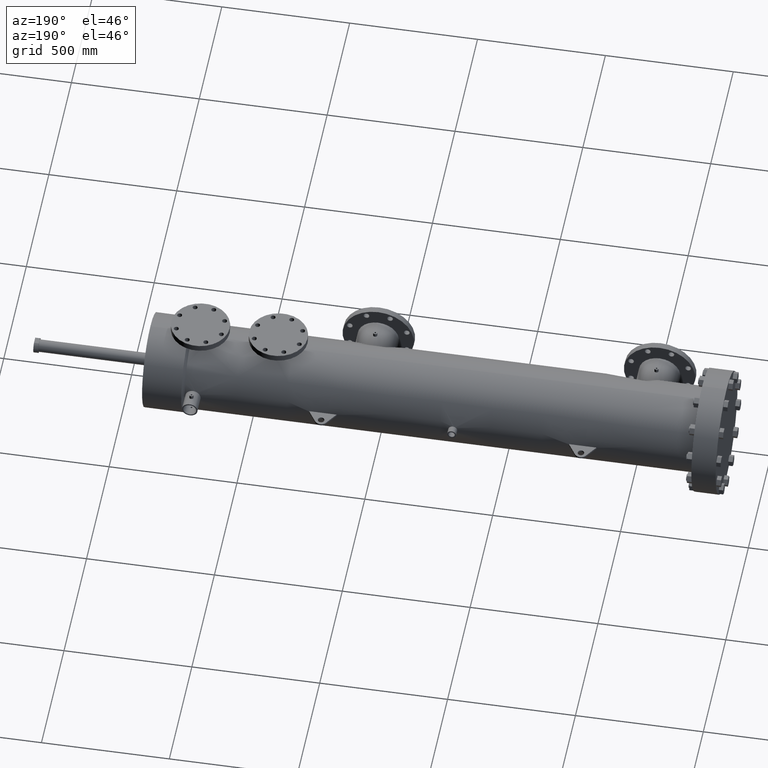
[diagram: clean part render]
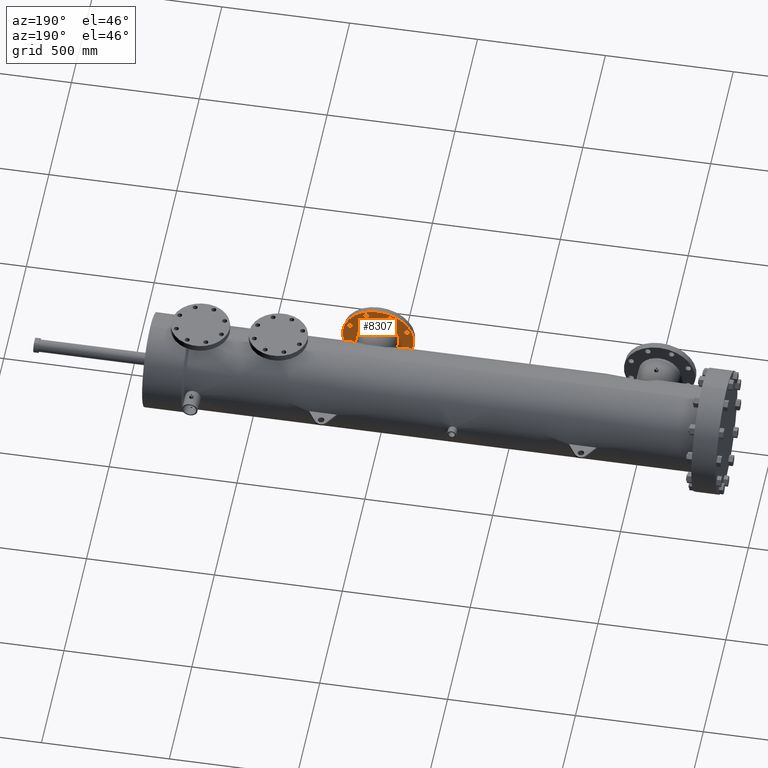
[diagram: same view with one face highlighted and labeled with its STEP entity id]
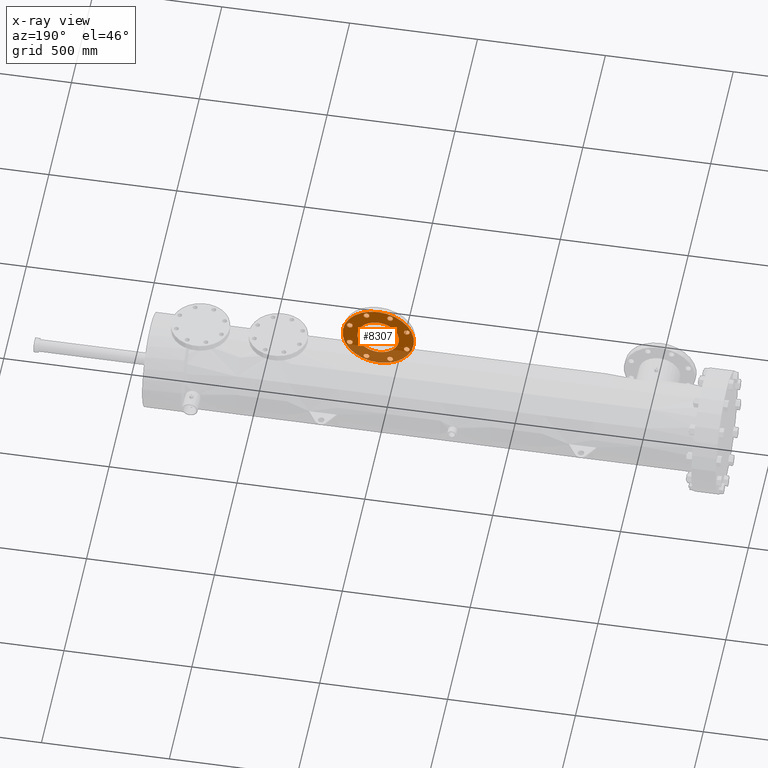
[diagram: x-ray of the same camera — body ghosted, the highlighted face saturated]
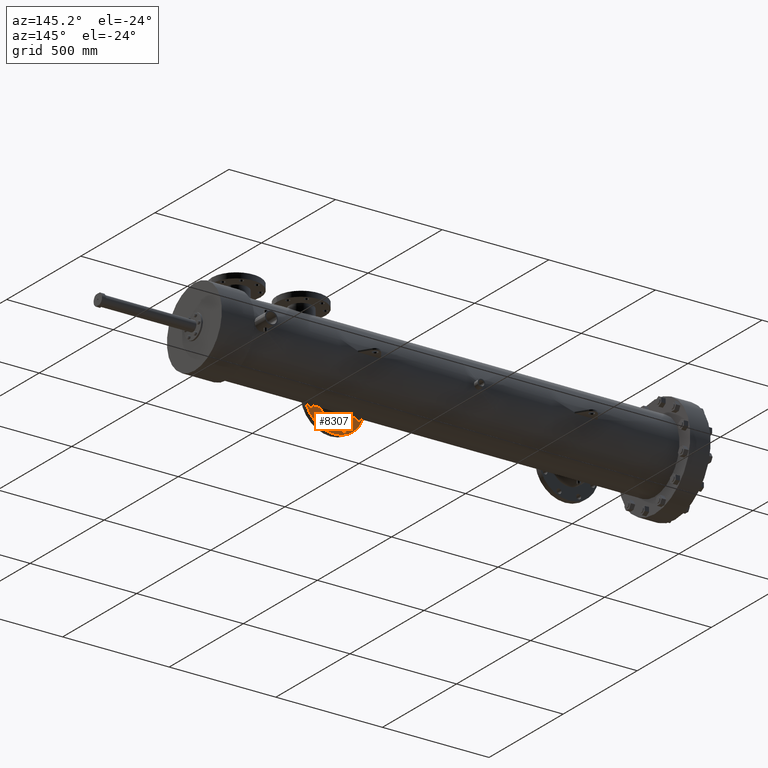
[diagram: same view with one face highlighted and labeled with its STEP entity id]
A machine part, auxiliary view. The second image highlights one B-rep face of the part: STEP entity #8307.
The next image is the same camera in x-ray: the body ghosted, the highlighted face saturated — about 32% of this face is hidden behind the body in this view.
A second angle (auxiliary view) of the same face is appended — the face is thin or edge-on in the first view.
In plain terms, the highlighted planar face has unit normal (-0, 1, 0).
Its self-contained STEP definition (entity closure, byte-faithful):
#241 = EDGE_CURVE ( 'NONE', #20006, #2032, #7569, .T. ) ;
#263 = DIRECTION ( 'NONE',  ( 0.0000000000000000000, 0.0000000000000000000, 1.000000000000000000 ) ) ;
#332 = ORIENTED_EDGE ( 'NONE', *, *, #4064, .T. ) ;
#421 = EDGE_CURVE ( 'NONE', #2140, #3892, #2969, .T. ) ;
#460 = ORIENTED_EDGE ( 'NONE', *, *, #14989, .T. ) ;
#600 = DIRECTION ( 'NONE',  ( 0.0000000000000000000, -1.000000000000000000, 0.0000000000000000000 ) ) ;
#683 = DIRECTION ( 'NONE',  ( 0.0000000000000000000, 0.0000000000000000000, 1.000000000000000000 ) ) ;
#919 = ORIENTED_EDGE ( 'NONE', *, *, #5020, .T. ) ;
#1232 = DIRECTION ( 'NONE',  ( 0.0000000000000000000, 0.0000000000000000000, 1.000000000000000000 ) ) ;
#1312 = CARTESIAN_POINT ( 'NONE',  ( 754.4543695991535515, 173.5313553879231563, 1.377614451264555617 ) ) ;
#1639 = AXIS2_PLACEMENT_3D ( 'NONE', #3551, #21237, #23183 ) ;
#1712 = ORIENTED_EDGE ( 'NONE', *, *, #9562, .T. ) ;
#1798 = VERTEX_POINT ( 'NONE', #9699 ) ;
#1883 = CARTESIAN_POINT ( 'NONE',  ( 751.8835562709892884, 173.5313553879231563, -4.828877951918369327 ) ) ;
#1944 = VERTEX_POINT ( 'NONE', #16028 ) ;
#2032 = VERTEX_POINT ( 'NONE', #2866 ) ;
#2140 = VERTEX_POINT ( 'NONE', #4900 ) ;
#2351 = DIRECTION ( 'NONE',  ( -0.0000000000000000000, 1.000000000000000000, 0.0000000000000000000 ) ) ;
#2866 = CARTESIAN_POINT ( 'NONE',  ( 751.8835562709898568, 173.5313553879231563, 3.948427779428540063 ) ) ;
#2969 = CIRCLE ( 'NONE', #7751, 3.196850393700750192 ) ;
#2997 = AXIS2_PLACEMENT_3D ( 'NONE', #8039, #19790, #6140 ) ;
#3471 = CIRCLE ( 'NONE', #1639, 0.4399999999999270051 ) ;
#3551 = CARTESIAN_POINT ( 'NONE',  ( 745.6770638678066234, 173.5313553879231563, 1.817614451264762510 ) ) ;
#3559 = DIRECTION ( 'NONE',  ( 0.0000000000000000000, 0.0000000000000000000, 1.000000000000000000 ) ) ;
#3647 = CARTESIAN_POINT ( 'NONE',  ( 751.8835562709892884, 173.5313553879231563, -4.388877951918441767 ) ) ;
#3892 = VERTEX_POINT ( 'NONE', #22376 ) ;
#3959 = CARTESIAN_POINT ( 'NONE',  ( 745.6770638678063960, 173.5313553879231563, -2.258064623754281186 ) ) ;
#4064 = EDGE_CURVE ( 'NONE', #4706, #20081, #20306, .T. ) ;
#4087 = AXIS2_PLACEMENT_3D ( 'NONE', #24871, #11386, #17312 ) ;
#4152 = VERTEX_POINT ( 'NONE', #17268 ) ;
#4254 = CARTESIAN_POINT ( 'NONE',  ( 750.0656234997047704, 173.5313553879231563, 0.0000000000000000000 ) ) ;
#4322 = DIRECTION ( 'NONE',  ( 0.0000000000000000000, 0.0000000000000000000, 1.000000000000000000 ) ) ;
#4333 = CIRCLE ( 'NONE', #11788, 0.4399999999999270051 ) ;
#4378 = CARTESIAN_POINT ( 'NONE',  ( 754.4543695991533241, 173.5313553879231563, -2.258064623754560962 ) ) ;
#4383 = CARTESIAN_POINT ( 'NONE',  ( 748.2478771959706592, 173.5313553879231563, 3.948427779428534290 ) ) ;
#4565 = AXIS2_PLACEMENT_3D ( 'NONE', #5506, #19401, #9605 ) ;
#4706 = VERTEX_POINT ( 'NONE', #3959 ) ;
#4900 = CARTESIAN_POINT ( 'NONE',  ( 750.0656234997047704, 173.5313553879231563, 3.196850393700750192 ) ) ;
#4995 = FACE_BOUND ( 'NONE', #23584, .T. ) ;
#5020 = EDGE_CURVE ( 'NONE', #23421, #1798, #24772, .T. ) ;
#5154 = AXIS2_PLACEMENT_3D ( 'NONE', #12976, #17184, #17000 ) ;
#5186 = DIRECTION ( 'NONE',  ( 0.0000000000000000000, 0.0000000000000000000, 1.000000000000000000 ) ) ;
#5326 = CARTESIAN_POINT ( 'NONE',  ( 745.6770638678066234, 173.5313553879231563, 1.817614451264762510 ) ) ;
#5506 = CARTESIAN_POINT ( 'NONE',  ( 750.0656234997047704, 173.5313553879231563, 0.0000000000000000000 ) ) ;
#5612 = FACE_BOUND ( 'NONE', #18819, .T. ) ;
#5834 = VERTEX_POINT ( 'NONE', #4383 ) ;
#5939 = FACE_BOUND ( 'NONE', #24940, .T. ) ;
#6041 = VERTEX_POINT ( 'NONE', #18547 ) ;
#6080 = DIRECTION ( 'NONE',  ( 0.0000000000000000000, 0.0000000000000000000, 1.000000000000000000 ) ) ;
#6140 = DIRECTION ( 'NONE',  ( 0.0000000000000000000, 0.0000000000000000000, 1.000000000000000000 ) ) ;
#6469 = DIRECTION ( 'NONE',  ( 0.0000000000000000000, 0.0000000000000000000, 1.000000000000000000 ) ) ;
#6503 = DIRECTION ( 'NONE',  ( 0.0000000000000000000, 0.0000000000000000000, 1.000000000000000000 ) ) ;
#6904 = VERTEX_POINT ( 'NONE', #14643 ) ;
#7231 = DIRECTION ( 'NONE',  ( 0.0000000000000000000, -1.000000000000000000, 0.0000000000000000000 ) ) ;
#7288 = VERTEX_POINT ( 'NONE', #4378 ) ;
#7569 = CIRCLE ( 'NONE', #2997, 0.4399999999999270051 ) ;
#7751 = AXIS2_PLACEMENT_3D ( 'NONE', #4254, #10143, #8203 ) ;
#7987 = AXIS2_PLACEMENT_3D ( 'NONE', #24500, #12724, #5186 ) ;
#8000 = CARTESIAN_POINT ( 'NONE',  ( 745.6770638678066234, 173.5313553879231563, 1.377614451264835393 ) ) ;
#8039 = CARTESIAN_POINT ( 'NONE',  ( 751.8835562709898568, 173.5313553879231563, 4.388427779428467623 ) ) ;
#8137 = AXIS2_PLACEMENT_3D ( 'NONE', #21365, #13512, #25254 ) ;
#8203 = DIRECTION ( 'NONE',  ( 0.0000000000000000000, 0.0000000000000000000, -1.000000000000000000 ) ) ;
#8307 = ADVANCED_FACE ( 'NONE', ( #19161, #5612, #15108, #11746, #4995, #5939, #12363, #14502, #16967, #21311 ), #12022, .T. ) ;
#8601 = CIRCLE ( 'NONE', #14076, 0.4399999999999270051 ) ;
#8602 = CIRCLE ( 'NONE', #23825, 3.196850393700750192 ) ;
#8611 = EDGE_CURVE ( 'NONE', #1798, #23421, #21923, .T. ) ;
#8689 = EDGE_CURVE ( 'NONE', #16009, #22265, #19731, .T. ) ;
#8704 = EDGE_CURVE ( 'NONE', #22265, #16009, #3471, .T. ) ;
#8857 = VERTEX_POINT ( 'NONE', #12926 ) ;
#8970 = CARTESIAN_POINT ( 'NONE',  ( 751.8835562709892884, 173.5313553879231563, -4.388877951918441767 ) ) ;
#9235 = EDGE_CURVE ( 'NONE', #20081, #4706, #24626, .T. ) ;
#9445 = EDGE_CURVE ( 'NONE', #2032, #20006, #13843, .T. ) ;
#9524 = EDGE_CURVE ( 'NONE', #10903, #1944, #4333, .T. ) ;
#9562 = EDGE_CURVE ( 'NONE', #6041, #5834, #10766, .T. ) ;
#9605 = DIRECTION ( 'NONE',  ( 0.0000000000000000000, 0.0000000000000000000, 1.000000000000000000 ) ) ;
#9699 = CARTESIAN_POINT ( 'NONE',  ( 748.2478771959703181, 173.5313553879231563, -4.828877951918196132 ) ) ;
#9954 = CARTESIAN_POINT ( 'NONE',  ( 750.0656234997047704, 173.5313553879231563, 0.0000000000000000000 ) ) ;
#10143 = DIRECTION ( 'NONE',  ( -0.0000000000000000000, -1.000000000000000000, -0.0000000000000000000 ) ) ;
#10205 = ORIENTED_EDGE ( 'NONE', *, *, #16644, .T. ) ;
#10375 = EDGE_LOOP ( 'NONE', ( #332, #18836 ) ) ;
#10564 = EDGE_CURVE ( 'NONE', #3892, #2140, #8602, .T. ) ;
#10693 = CIRCLE ( 'NONE', #4565, 5.500000000000049738 ) ;
#10724 = EDGE_LOOP ( 'NONE', ( #21238, #23987 ) ) ;
#10766 = CIRCLE ( 'NONE', #15719, 0.4400000000000728884 ) ;
#10792 = AXIS2_PLACEMENT_3D ( 'NONE', #20036, #20120, #6469 ) ;
#10903 = VERTEX_POINT ( 'NONE', #1312 ) ;
#10917 = CIRCLE ( 'NONE', #8137, 0.4399999999999270051 ) ;
#11153 = ORIENTED_EDGE ( 'NONE', *, *, #24038, .T. ) ;
#11351 = ORIENTED_EDGE ( 'NONE', *, *, #421, .T. ) ;
#11386 = DIRECTION ( 'NONE',  ( 0.0000000000000000000, -1.000000000000000000, 0.0000000000000000000 ) ) ;
#11746 = FACE_BOUND ( 'NONE', #20113, .T. ) ;
#11784 = ORIENTED_EDGE ( 'NONE', *, *, #15479, .T. ) ;
#11788 = AXIS2_PLACEMENT_3D ( 'NONE', #23412, #15655, #263 ) ;
#12022 = PLANE ( 'NONE',  #18889 ) ;
#12038 = EDGE_CURVE ( 'NONE', #8857, #7288, #15194, .T. ) ;
#12363 = FACE_BOUND ( 'NONE', #23052, .T. ) ;
#12412 = EDGE_CURVE ( 'NONE', #4152, #24522, #16949, .T. ) ;
#12630 = DIRECTION ( 'NONE',  ( -0.0000000000000000000, 1.000000000000000000, -0.0000000000000000000 ) ) ;
#12724 = DIRECTION ( 'NONE',  ( 0.0000000000000000000, -1.000000000000000000, 0.0000000000000000000 ) ) ;
#12926 = CARTESIAN_POINT ( 'NONE',  ( 754.4543695991533241, 173.5313553879231563, -1.378064623754706952 ) ) ;
#12976 = CARTESIAN_POINT ( 'NONE',  ( 745.6770638678063960, 173.5313553879231563, -1.818064623754354292 ) ) ;
#13093 = CARTESIAN_POINT ( 'NONE',  ( 754.4543695991533241, 173.5313553879231563, -1.818064623754634068 ) ) ;
#13115 = AXIS2_PLACEMENT_3D ( 'NONE', #5326, #7231, #15089 ) ;
#13229 = DIRECTION ( 'NONE',  ( 0.0000000000000000000, -1.000000000000000000, 0.0000000000000000000 ) ) ;
#13453 = EDGE_LOOP ( 'NONE', ( #17789, #11351 ) ) ;
#13512 = DIRECTION ( 'NONE',  ( 0.0000000000000000000, -1.000000000000000000, 0.0000000000000000000 ) ) ;
#13602 = CARTESIAN_POINT ( 'NONE',  ( 745.6770638678063960, 173.5313553879231563, -1.818064623754354292 ) ) ;
#13778 = DIRECTION ( 'NONE',  ( 0.0000000000000000000, -1.000000000000000000, 0.0000000000000000000 ) ) ;
#13843 = CIRCLE ( 'NONE', #19224, 0.4399999999999270051 ) ;
#14035 = EDGE_CURVE ( 'NONE', #21580, #6904, #8601, .T. ) ;
#14076 = AXIS2_PLACEMENT_3D ( 'NONE', #8970, #22647, #22559 ) ;
#14502 = FACE_BOUND ( 'NONE', #10724, .T. ) ;
#14600 = DIRECTION ( 'NONE',  ( 0.0000000000000000000, 0.0000000000000000000, 1.000000000000000000 ) ) ;
#14643 = CARTESIAN_POINT ( 'NONE',  ( 751.8835562709892884, 173.5313553879231563, -3.948877951918515095 ) ) ;
#14989 = EDGE_CURVE ( 'NONE', #24522, #4152, #10693, .T. ) ;
#15089 = DIRECTION ( 'NONE',  ( 0.0000000000000000000, 0.0000000000000000000, 1.000000000000000000 ) ) ;
#15108 = FACE_BOUND ( 'NONE', #18198, .T. ) ;
#15194 = CIRCLE ( 'NONE', #20083, 0.4399999999999270051 ) ;
#15396 = DIRECTION ( 'NONE',  ( 0.0000000000000000000, 0.0000000000000000000, 1.000000000000000000 ) ) ;
#15479 = EDGE_CURVE ( 'NONE', #6904, #21580, #19930, .T. ) ;
#15655 = DIRECTION ( 'NONE',  ( 0.0000000000000000000, -1.000000000000000000, 0.0000000000000000000 ) ) ;
#15719 = AXIS2_PLACEMENT_3D ( 'NONE', #19810, #13778, #6080 ) ;
#15925 = EDGE_CURVE ( 'NONE', #1944, #10903, #16182, .T. ) ;
#15962 = CARTESIAN_POINT ( 'NONE',  ( 0.0000000000000000000, 173.5313553879231563, 0.0000000000000000000 ) ) ;
#16009 = VERTEX_POINT ( 'NONE', #18567 ) ;
#16028 = CARTESIAN_POINT ( 'NONE',  ( 754.4543695991535515, 173.5313553879231563, 2.257614451264409627 ) ) ;
#16182 = CIRCLE ( 'NONE', #10792, 0.4399999999999270051 ) ;
#16644 = EDGE_CURVE ( 'NONE', #5834, #6041, #24154, .T. ) ;
#16949 = CIRCLE ( 'NONE', #24011, 5.500000000000049738 ) ;
#16967 = FACE_BOUND ( 'NONE', #13453, .T. ) ;
#17000 = DIRECTION ( 'NONE',  ( 0.0000000000000000000, 0.0000000000000000000, 1.000000000000000000 ) ) ;
#17184 = DIRECTION ( 'NONE',  ( 0.0000000000000000000, -1.000000000000000000, 0.0000000000000000000 ) ) ;
#17268 = CARTESIAN_POINT ( 'NONE',  ( 750.0656234997047704, 173.5313553879231563, -5.500000000000049738 ) ) ;
#17312 = DIRECTION ( 'NONE',  ( 0.0000000000000000000, 0.0000000000000000000, 1.000000000000000000 ) ) ;
#17488 = CARTESIAN_POINT ( 'NONE',  ( 751.8835562709898568, 173.5313553879231563, 4.388427779428467623 ) ) ;
#17789 = ORIENTED_EDGE ( 'NONE', *, *, #10564, .T. ) ;
#17818 = ORIENTED_EDGE ( 'NONE', *, *, #9445, .T. ) ;
#17824 = CARTESIAN_POINT ( 'NONE',  ( 745.6770638678063960, 173.5313553879231563, -1.378064623754427176 ) ) ;
#17951 = DIRECTION ( 'NONE',  ( 0.0000000000000000000, 0.0000000000000000000, -1.000000000000000000 ) ) ;
#18198 = EDGE_LOOP ( 'NONE', ( #23260, #11784 ) ) ;
#18203 = CARTESIAN_POINT ( 'NONE',  ( 748.2478771959703181, 173.5313553879231563, -3.948877951918341900 ) ) ;
#18209 = AXIS2_PLACEMENT_3D ( 'NONE', #3647, #13229, #3559 ) ;
#18547 = CARTESIAN_POINT ( 'NONE',  ( 748.2478771959706592, 173.5313553879231563, 4.828427779428680289 ) ) ;
#18567 = CARTESIAN_POINT ( 'NONE',  ( 745.6770638678066234, 173.5313553879231563, 2.257614451264689404 ) ) ;
#18654 = DIRECTION ( 'NONE',  ( 0.0000000000000000000, -1.000000000000000000, 0.0000000000000000000 ) ) ;
#18819 = EDGE_LOOP ( 'NONE', ( #19439, #919 ) ) ;
#18836 = ORIENTED_EDGE ( 'NONE', *, *, #9235, .T. ) ;
#18889 = AXIS2_PLACEMENT_3D ( 'NONE', #15962, #2351, #4322 ) ;
#19161 = FACE_BOUND ( 'NONE', #10375, .T. ) ;
#19224 = AXIS2_PLACEMENT_3D ( 'NONE', #17488, #21216, #15396 ) ;
#19401 = DIRECTION ( 'NONE',  ( -0.0000000000000000000, 1.000000000000000000, -0.0000000000000000000 ) ) ;
#19430 = EDGE_LOOP ( 'NONE', ( #460, #25287 ) ) ;
#19439 = ORIENTED_EDGE ( 'NONE', *, *, #8611, .T. ) ;
#19731 = CIRCLE ( 'NONE', #13115, 0.4399999999999270051 ) ;
#19790 = DIRECTION ( 'NONE',  ( 0.0000000000000000000, -1.000000000000000000, 0.0000000000000000000 ) ) ;
#19810 = CARTESIAN_POINT ( 'NONE',  ( 748.2478771959706592, 173.5313553879231563, 4.388427779428607067 ) ) ;
#19854 = DIRECTION ( 'NONE',  ( -0.0000000000000000000, -1.000000000000000000, -0.0000000000000000000 ) ) ;
#19930 = CIRCLE ( 'NONE', #18209, 0.4399999999999270051 ) ;
#20006 = VERTEX_POINT ( 'NONE', #22795 ) ;
#20036 = CARTESIAN_POINT ( 'NONE',  ( 754.4543695991535515, 173.5313553879231563, 1.817614451264482733 ) ) ;
#20081 = VERTEX_POINT ( 'NONE', #17824 ) ;
#20083 = AXIS2_PLACEMENT_3D ( 'NONE', #13093, #22489, #683 ) ;
#20113 = EDGE_LOOP ( 'NONE', ( #11153, #25428 ) ) ;
#20120 = DIRECTION ( 'NONE',  ( 0.0000000000000000000, -1.000000000000000000, 0.0000000000000000000 ) ) ;
#20306 = CIRCLE ( 'NONE', #5154, 0.4399999999999270051 ) ;
#20537 = ORIENTED_EDGE ( 'NONE', *, *, #15925, .T. ) ;
#20718 = ORIENTED_EDGE ( 'NONE', *, *, #241, .T. ) ;
#21216 = DIRECTION ( 'NONE',  ( 0.0000000000000000000, -1.000000000000000000, 0.0000000000000000000 ) ) ;
#21237 = DIRECTION ( 'NONE',  ( 0.0000000000000000000, -1.000000000000000000, 0.0000000000000000000 ) ) ;
#21238 = ORIENTED_EDGE ( 'NONE', *, *, #8704, .T. ) ;
#21311 = FACE_OUTER_BOUND ( 'NONE', #19430, .T. ) ;
#21365 = CARTESIAN_POINT ( 'NONE',  ( 754.4543695991533241, 173.5313553879231563, -1.818064623754634068 ) ) ;
#21386 = AXIS2_PLACEMENT_3D ( 'NONE', #24727, #18654, #1232 ) ;
#21580 = VERTEX_POINT ( 'NONE', #1883 ) ;
#21923 = CIRCLE ( 'NONE', #21386, 0.4399999999999270051 ) ;
#22233 = CARTESIAN_POINT ( 'NONE',  ( 750.0656234997047704, 173.5313553879231563, 5.500000000000049738 ) ) ;
#22265 = VERTEX_POINT ( 'NONE', #8000 ) ;
#22376 = CARTESIAN_POINT ( 'NONE',  ( 750.0656234997047704, 173.5313553879231563, -3.196850393700750192 ) ) ;
#22489 = DIRECTION ( 'NONE',  ( 0.0000000000000000000, -1.000000000000000000, 0.0000000000000000000 ) ) ;
#22559 = DIRECTION ( 'NONE',  ( 0.0000000000000000000, 0.0000000000000000000, 1.000000000000000000 ) ) ;
#22647 = DIRECTION ( 'NONE',  ( 0.0000000000000000000, -1.000000000000000000, 0.0000000000000000000 ) ) ;
#22795 = CARTESIAN_POINT ( 'NONE',  ( 751.8835562709898568, 173.5313553879231563, 4.828427779428394295 ) ) ;
#23052 = EDGE_LOOP ( 'NONE', ( #10205, #1712 ) ) ;
#23183 = DIRECTION ( 'NONE',  ( 0.0000000000000000000, 0.0000000000000000000, 1.000000000000000000 ) ) ;
#23260 = ORIENTED_EDGE ( 'NONE', *, *, #14035, .T. ) ;
#23412 = CARTESIAN_POINT ( 'NONE',  ( 754.4543695991535515, 173.5313553879231563, 1.817614451264482733 ) ) ;
#23421 = VERTEX_POINT ( 'NONE', #18203 ) ;
#23584 = EDGE_LOOP ( 'NONE', ( #25057, #20537 ) ) ;
#23825 = AXIS2_PLACEMENT_3D ( 'NONE', #9954, #19854, #17951 ) ;
#23973 = AXIS2_PLACEMENT_3D ( 'NONE', #13602, #600, #6503 ) ;
#23987 = ORIENTED_EDGE ( 'NONE', *, *, #8689, .T. ) ;
#24011 = AXIS2_PLACEMENT_3D ( 'NONE', #24407, #12630, #14600 ) ;
#24038 = EDGE_CURVE ( 'NONE', #7288, #8857, #10917, .T. ) ;
#24154 = CIRCLE ( 'NONE', #4087, 0.4400000000000728884 ) ;
#24407 = CARTESIAN_POINT ( 'NONE',  ( 750.0656234997047704, 173.5313553879231563, 0.0000000000000000000 ) ) ;
#24500 = CARTESIAN_POINT ( 'NONE',  ( 748.2478771959703181, 173.5313553879231563, -4.388877951918268572 ) ) ;
#24522 = VERTEX_POINT ( 'NONE', #22233 ) ;
#24626 = CIRCLE ( 'NONE', #23973, 0.4399999999999270051 ) ;
#24727 = CARTESIAN_POINT ( 'NONE',  ( 748.2478771959703181, 173.5313553879231563, -4.388877951918268572 ) ) ;
#24772 = CIRCLE ( 'NONE', #7987, 0.4399999999999270051 ) ;
#24871 = CARTESIAN_POINT ( 'NONE',  ( 748.2478771959706592, 173.5313553879231563, 4.388427779428607067 ) ) ;
#24940 = EDGE_LOOP ( 'NONE', ( #17818, #20718 ) ) ;
#25057 = ORIENTED_EDGE ( 'NONE', *, *, #9524, .T. ) ;
#25254 = DIRECTION ( 'NONE',  ( 0.0000000000000000000, 0.0000000000000000000, 1.000000000000000000 ) ) ;
#25287 = ORIENTED_EDGE ( 'NONE', *, *, #12412, .T. ) ;
#25428 = ORIENTED_EDGE ( 'NONE', *, *, #12038, .T. ) ;